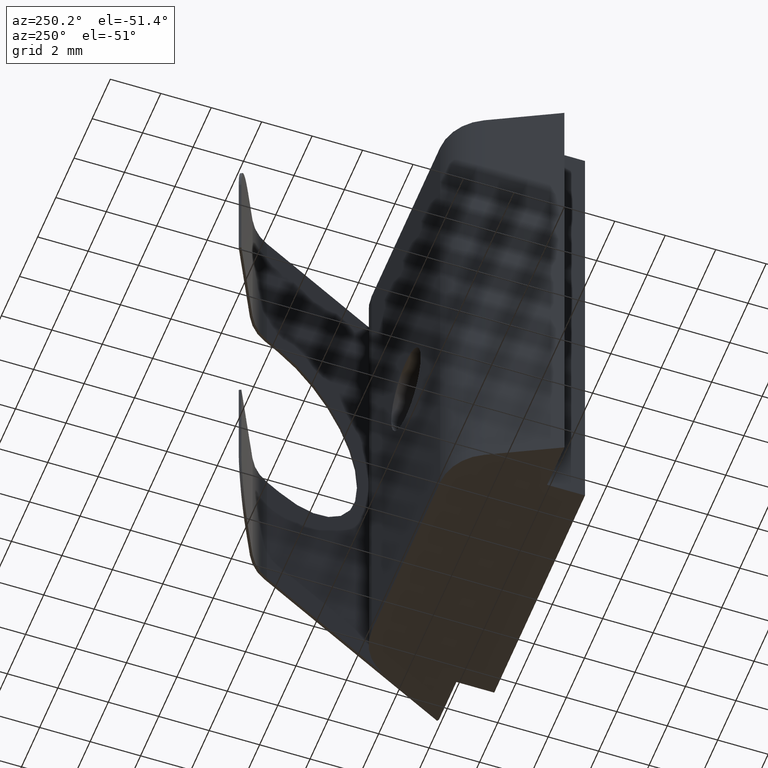
[diagram: clean part render]
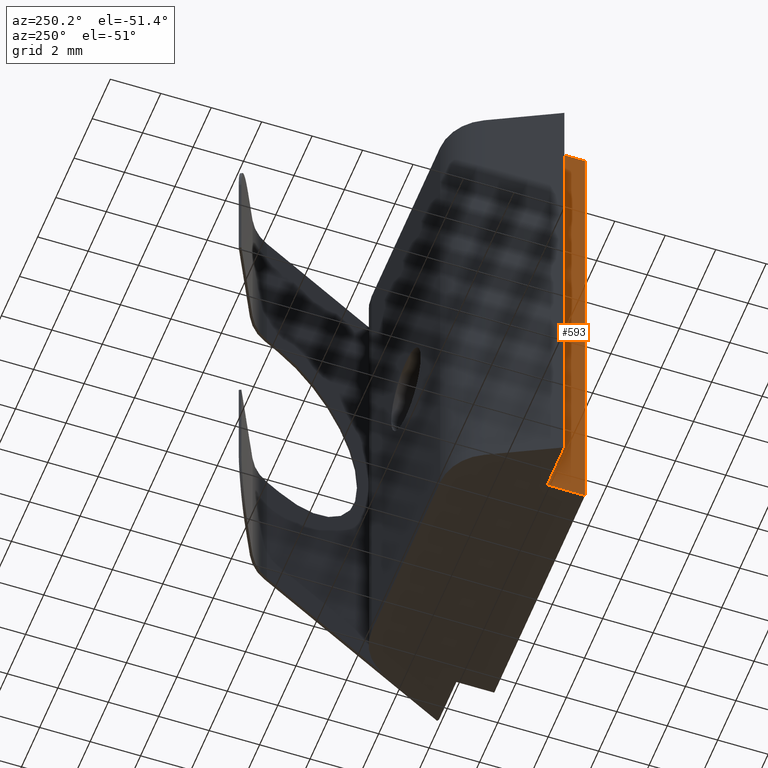
[diagram: same view with one face highlighted and labeled with its STEP entity id]
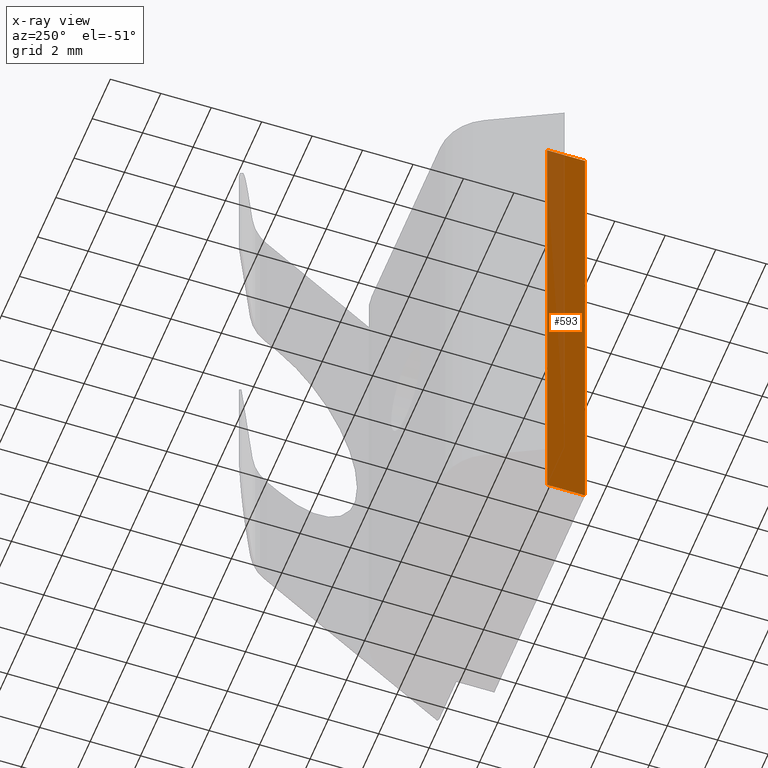
[diagram: x-ray of the same camera — body ghosted, the highlighted face saturated]
A machine part, auxiliary view. The second image highlights one B-rep face of the part: STEP entity #593.
The next image is the same camera in x-ray: the body ghosted, the highlighted face saturated — about 21% of this face is hidden behind the body in this view.
In plain terms, the highlighted planar face has unit normal (-1, 0, 0).
Its self-contained STEP definition (entity closure, byte-faithful):
#36=PLANE('',#665);
#66=FACE_OUTER_BOUND('',#98,.T.);
#98=EDGE_LOOP('',(#548,#549,#550,#551));
#141=LINE('',#959,#205);
#155=LINE('',#992,#219);
#162=LINE('',#1007,#226);
#163=LINE('',#1009,#227);
#205=VECTOR('',#774,10.);
#219=VECTOR('',#806,10.);
#226=VECTOR('',#825,10.);
#227=VECTOR('',#828,10.);
#290=VERTEX_POINT('',#956);
#291=VERTEX_POINT('',#958);
#300=VERTEX_POINT('',#989);
#301=VERTEX_POINT('',#991);
#362=EDGE_CURVE('',#290,#291,#141,.T.);
#378=EDGE_CURVE('',#300,#301,#155,.T.);
#386=EDGE_CURVE('',#300,#291,#162,.T.);
#387=EDGE_CURVE('',#301,#290,#163,.T.);
#548=ORIENTED_EDGE('',*,*,#378,.F.);
#549=ORIENTED_EDGE('',*,*,#386,.T.);
#550=ORIENTED_EDGE('',*,*,#362,.F.);
#551=ORIENTED_EDGE('',*,*,#387,.F.);
#593=ADVANCED_FACE('',(#66),#36,.T.);
#665=AXIS2_PLACEMENT_3D('',#1008,#826,#827);
#774=DIRECTION('',(0.,-1.,0.));
#806=DIRECTION('',(0.,1.,0.));
#825=DIRECTION('',(0.,0.,1.));
#826=DIRECTION('center_axis',(-1.,0.,0.));
#827=DIRECTION('ref_axis',(0.,-1.,0.));
#828=DIRECTION('',(0.,0.,1.));
#956=CARTESIAN_POINT('',(-5.,-6.24500451351651E-16,20.));
#958=CARTESIAN_POINT('',(-5.,-1.5,20.));
#959=CARTESIAN_POINT('',(-5.,-1.5,20.));
#989=CARTESIAN_POINT('',(-5.,-1.5,0.));
#991=CARTESIAN_POINT('',(-5.,-6.24500451351651E-16,0.));
#992=CARTESIAN_POINT('',(-5.,-1.5,0.));
#1007=CARTESIAN_POINT('',(-5.,-1.5,0.));
#1008=CARTESIAN_POINT('Origin',(-5.,-5.55111512312578E-16,0.));
#1009=CARTESIAN_POINT('',(-5.,-6.24500451351651E-16,0.));